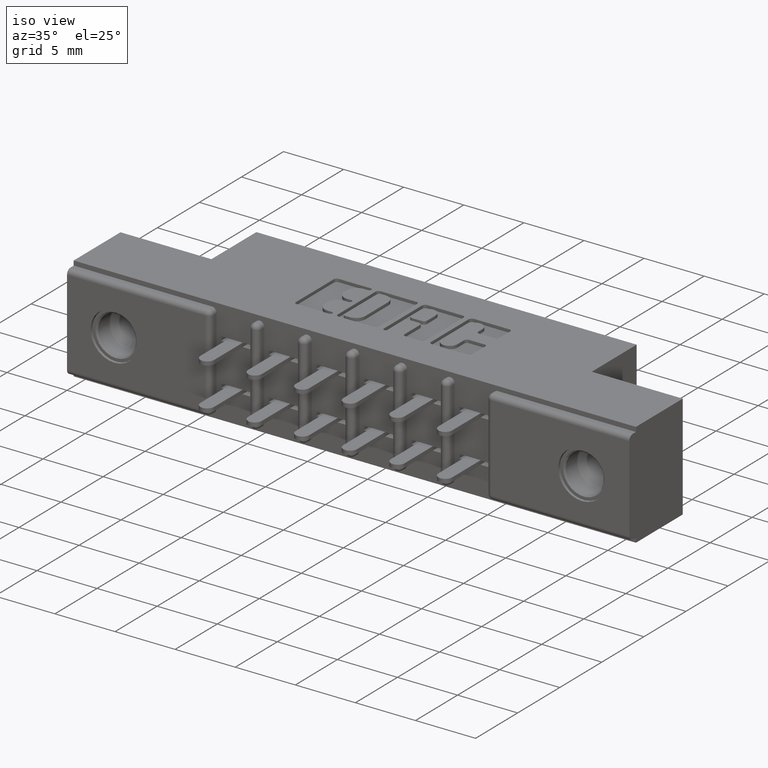
[diagram: clean part render]
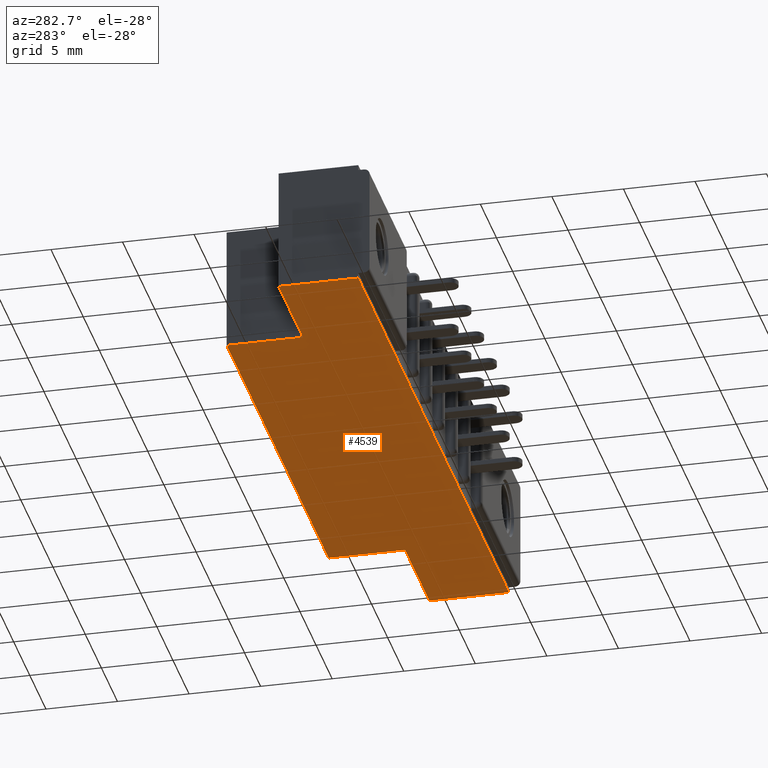
[diagram: tour spotlight — one face highlighted and labeled with its STEP entity id]
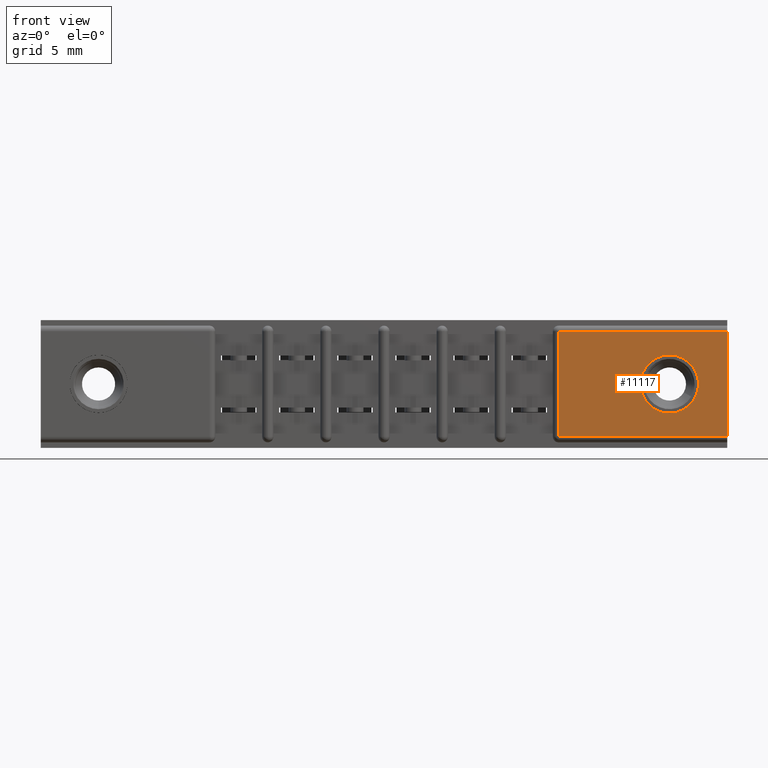
[diagram: tour spotlight — one face highlighted and labeled with its STEP entity id]
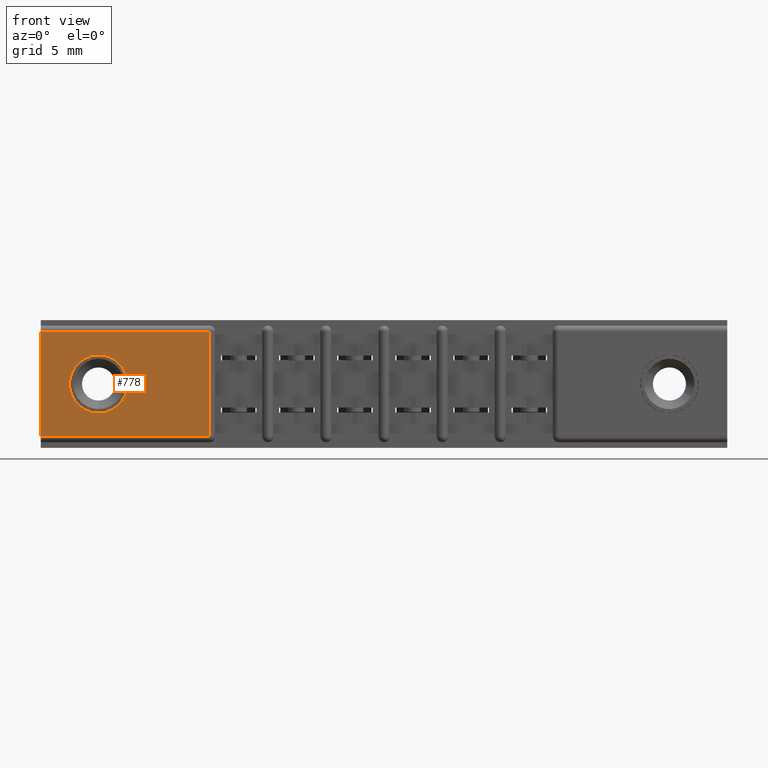
[diagram: tour spotlight — one face highlighted and labeled with its STEP entity id]
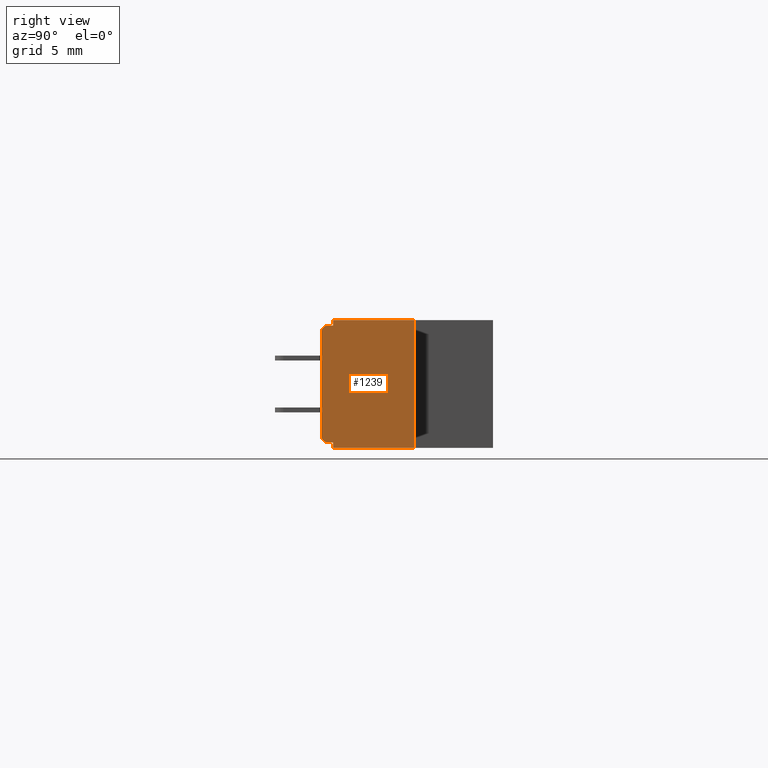
[diagram: tour spotlight — one face highlighted and labeled with its STEP entity id]
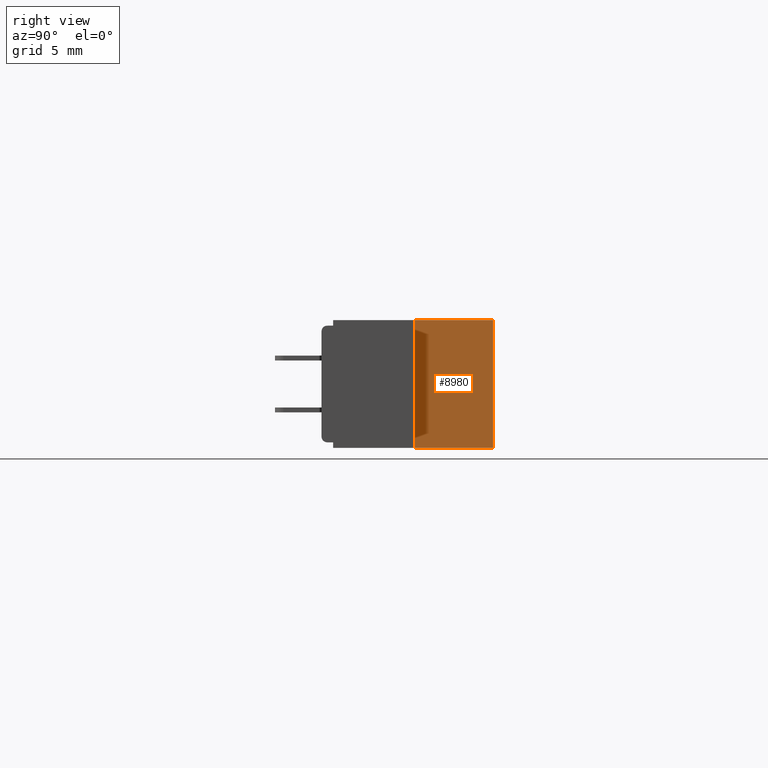
[diagram: tour spotlight — one face highlighted and labeled with its STEP entity id]
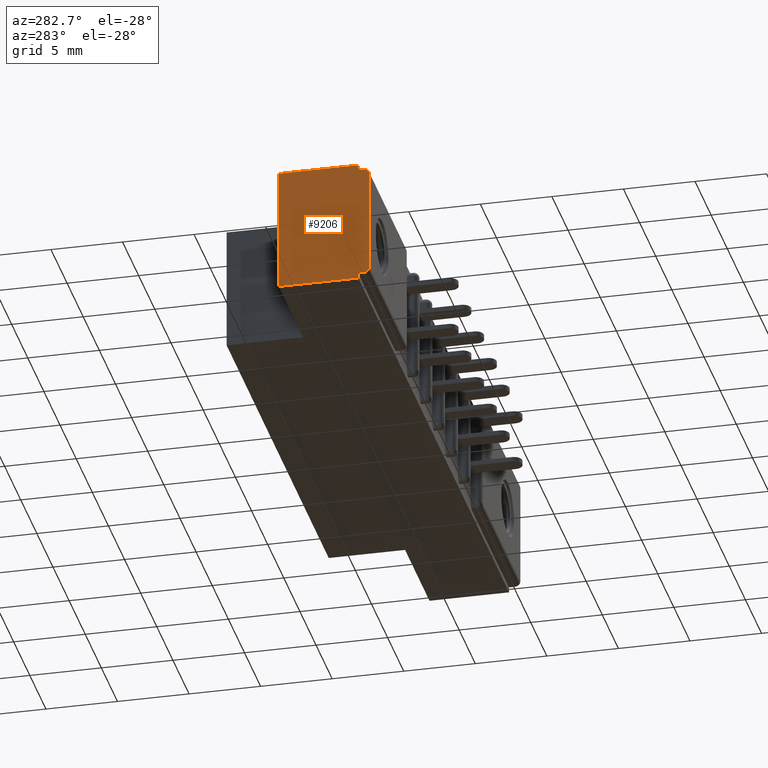
[diagram: tour spotlight — one face highlighted and labeled with its STEP entity id]
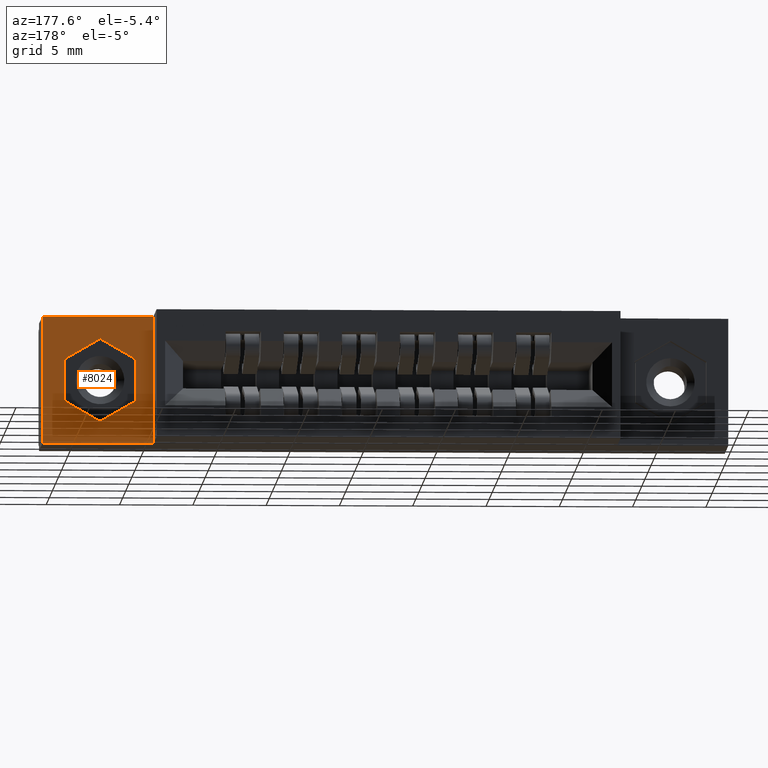
[diagram: tour spotlight — one face highlighted and labeled with its STEP entity id]
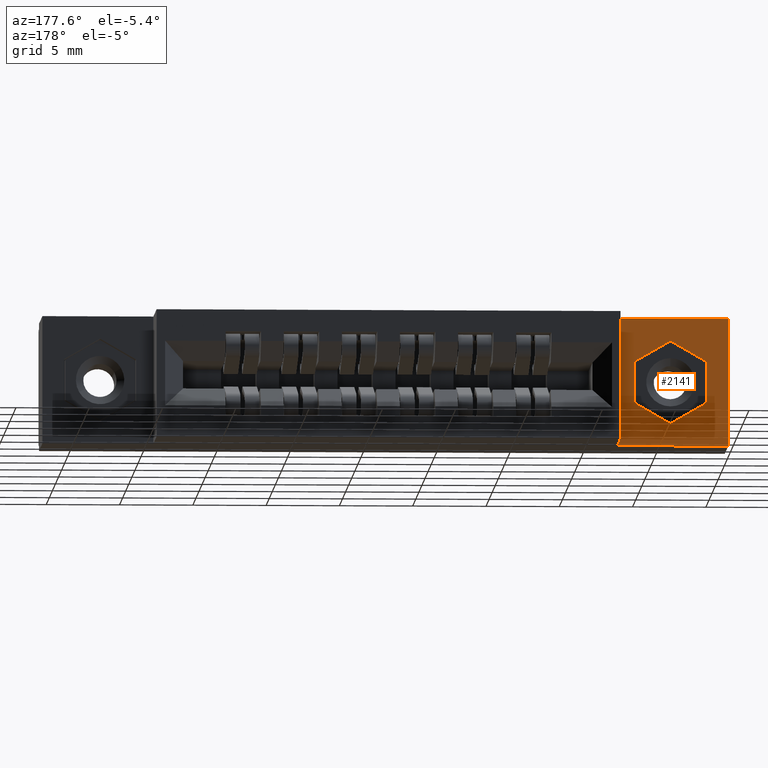
[diagram: tour spotlight — one face highlighted and labeled with its STEP entity id]
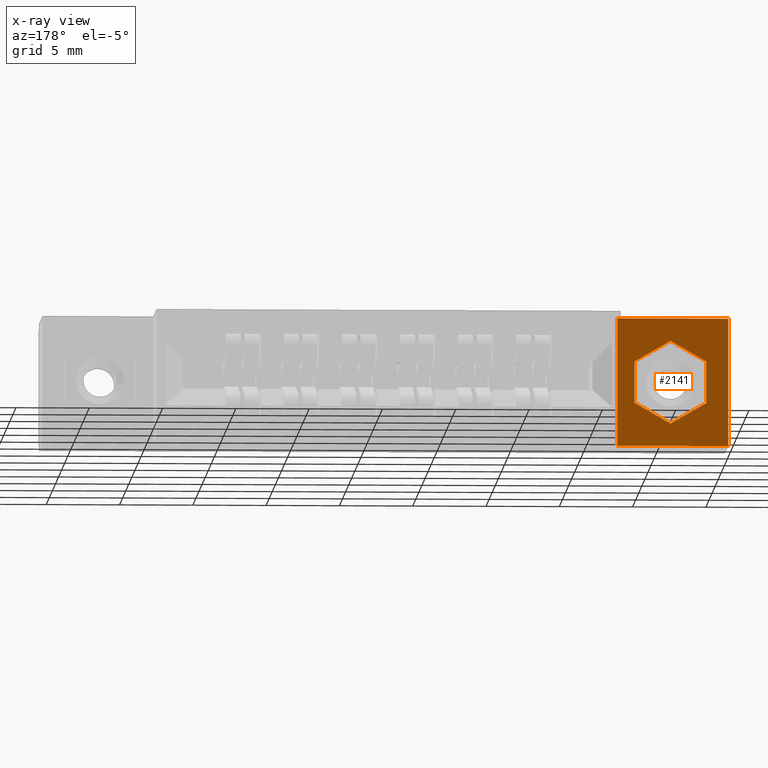
[diagram: x-ray of the same camera — body ghosted, this tour face saturated]
A machine part: a face-by-face anatomy tour. The part has 728 B-rep faces; the first image is the clean iso view, then the 8 largest visible faces are spotlighted one at a time (largest first), each with its STEP entity span.

Face 1 — auxiliary view, entity #4539. In plain terms, the highlighted planar face has unit normal (0, 0, 1).
Definition (entity closure, byte-faithful):
#151 = VECTOR ( 'NONE', #9069, 39.37007874015748100 ) ;
#498 = VERTEX_POINT ( 'NONE', #9422 ) ;
#690 = VECTOR ( 'NONE', #6920, 39.37007874015748100 ) ;
#742 = VERTEX_POINT ( 'NONE', #5279 ) ;
#783 = VERTEX_POINT ( 'NONE', #8348 ) ;
#792 = FACE_OUTER_BOUND ( 'NONE', #4860, .T. ) ;
#863 = DIRECTION ( 'NONE',  ( 0.0000000000000000000, 0.0000000000000000000, 1.000000000000000000 ) ) ;
#1017 = EDGE_CURVE ( 'NONE', #10269, #7176, #8209, .T. ) ;
#1090 = EDGE_CURVE ( 'NONE', #742, #783, #2606, .T. ) ;
#1454 = VECTOR ( 'NONE', #11543, 39.37007874015748100 ) ;
#1474 = CARTESIAN_POINT ( 'NONE',  ( 0.2980000000000002100, 0.2500000000000000600, -0.3430000000000000300 ) ) ;
#1975 = ORIENTED_EDGE ( 'NONE', *, *, #4916, .T. ) ;
#2606 = LINE ( 'NONE', #9921, #151 ) ;
#2779 = LINE ( 'NONE', #7144, #11439 ) ;
#2808 = CARTESIAN_POINT ( 'NONE',  ( 1.842000000000000100, 0.4600000000000000200, -0.3430000000000000300 ) ) ;
#3381 = EDGE_CURVE ( 'NONE', #498, #7655, #4716, .T. ) ;
#3502 = CARTESIAN_POINT ( 'NONE',  ( 1.544000000000000300, 0.2500000000000000600, -0.3429999999999997500 ) ) ;
#3615 = VECTOR ( 'NONE', #6317, 39.37007874015748100 ) ;
#3918 = CARTESIAN_POINT ( 'NONE',  ( 0.2980000000000002100, 0.4600000000000000200, -0.3430000000000000300 ) ) ;
#4260 = DIRECTION ( 'NONE',  ( -0.0000000000000000000, 1.000000000000000000, -0.0000000000000000000 ) ) ;
#4539 = ADVANCED_FACE ( 'NONE', ( #792 ), #5414, .F. ) ;
#4716 = LINE ( 'NONE', #9780, #690 ) ;
#4848 = CARTESIAN_POINT ( 'NONE',  ( 1.544000000000000300, 0.4600000000000000200, -0.3429999999999997500 ) ) ;
#4860 = EDGE_LOOP ( 'NONE', ( #6154, #9697, #9199, #1975, #10842, #10341, #8680, #7476 ) ) ;
#4916 = EDGE_CURVE ( 'NONE', #498, #742, #7272, .T. ) ;
#5079 = CARTESIAN_POINT ( 'NONE',  ( 0.0000000000000000000, 0.2500000000000000600, -0.3430000000000000300 ) ) ;
#5279 = CARTESIAN_POINT ( 'NONE',  ( 1.842000000000000100, 0.03100000000000000000, -0.3430000000000000300 ) ) ;
#5380 = CARTESIAN_POINT ( 'NONE',  ( 0.0000000000000000000, 0.4600000000000000200, -0.3430000000000000300 ) ) ;
#5414 = PLANE ( 'NONE',  #7375 ) ;
#5763 = EDGE_CURVE ( 'NONE', #7655, #9394, #2779, .T. ) ;
#5787 = DIRECTION ( 'NONE',  ( -0.0000000000000000000, 1.000000000000000000, -0.0000000000000000000 ) ) ;
#6154 = ORIENTED_EDGE ( 'NONE', *, *, #7674, .F. ) ;
#6317 = DIRECTION ( 'NONE',  ( -1.000000000000000000, -0.0000000000000000000, -0.0000000000000000000 ) ) ;
#6603 = DIRECTION ( 'NONE',  ( -0.0000000000000000000, -1.000000000000000000, -0.0000000000000000000 ) ) ;
#6920 = DIRECTION ( 'NONE',  ( -1.000000000000000000, 0.0000000000000000000, 9.167275146524376100E-016 ) ) ;
#7144 = CARTESIAN_POINT ( 'NONE',  ( 1.544000000000000300, 0.2500000000000000600, -0.3429999999999997500 ) ) ;
#7176 = VERTEX_POINT ( 'NONE', #7428 ) ;
#7272 = LINE ( 'NONE', #2808, #7400 ) ;
#7375 = AXIS2_PLACEMENT_3D ( 'NONE', #11048, #863, #11880 ) ;
#7400 = VECTOR ( 'NONE', #9287, 39.37007874015748100 ) ;
#7428 = CARTESIAN_POINT ( 'NONE',  ( 0.0000000000000000000, 0.2500000000000000600, -0.3430000000000000300 ) ) ;
#7453 = VECTOR ( 'NONE', #5787, 39.37007874015748100 ) ;
#7476 = ORIENTED_EDGE ( 'NONE', *, *, #8733, .T. ) ;
#7655 = VERTEX_POINT ( 'NONE', #3502 ) ;
#7674 = EDGE_CURVE ( 'NONE', #9394, #11520, #9496, .T. ) ;
#8020 = VECTOR ( 'NONE', #6603, 39.37007874015748100 ) ;
#8209 = LINE ( 'NONE', #5079, #1454 ) ;
#8348 = CARTESIAN_POINT ( 'NONE',  ( 0.0000000000000000000, 0.03100000000000000000, -0.3430000000000000300 ) ) ;
#8452 = LINE ( 'NONE', #8568, #8020 ) ;
#8568 = CARTESIAN_POINT ( 'NONE',  ( 0.0000000000000000000, 0.4600000000000000200, -0.3430000000000000300 ) ) ;
#8607 = LINE ( 'NONE', #10378, #7453 ) ;
#8680 = ORIENTED_EDGE ( 'NONE', *, *, #1017, .F. ) ;
#8733 = EDGE_CURVE ( 'NONE', #10269, #11520, #8607, .T. ) ;
#9069 = DIRECTION ( 'NONE',  ( -1.000000000000000000, -0.0000000000000000000, -0.0000000000000000000 ) ) ;
#9199 = ORIENTED_EDGE ( 'NONE', *, *, #3381, .F. ) ;
#9287 = DIRECTION ( 'NONE',  ( -0.0000000000000000000, -1.000000000000000000, -0.0000000000000000000 ) ) ;
#9394 = VERTEX_POINT ( 'NONE', #4848 ) ;
#9422 = CARTESIAN_POINT ( 'NONE',  ( 1.842000000000000100, 0.2500000000000000600, -0.3430000000000000300 ) ) ;
#9496 = LINE ( 'NONE', #5380, #3615 ) ;
#9697 = ORIENTED_EDGE ( 'NONE', *, *, #5763, .F. ) ;
#9780 = CARTESIAN_POINT ( 'NONE',  ( 1.842000000000000100, 0.2500000000000000600, -0.3430000000000000300 ) ) ;
#9921 = CARTESIAN_POINT ( 'NONE',  ( 1.842000000000000100, 0.03100000000000000000, -0.3430000000000000300 ) ) ;
#10269 = VERTEX_POINT ( 'NONE', #1474 ) ;
#10341 = ORIENTED_EDGE ( 'NONE', *, *, #11568, .F. ) ;
#10378 = CARTESIAN_POINT ( 'NONE',  ( 0.2980000000000002100, 0.2500000000000000600, -0.3430000000000000300 ) ) ;
#10842 = ORIENTED_EDGE ( 'NONE', *, *, #1090, .T. ) ;
#11048 = CARTESIAN_POINT ( 'NONE',  ( 0.0000000000000000000, 0.4600000000000000200, -0.3430000000000000300 ) ) ;
#11439 = VECTOR ( 'NONE', #4260, 39.37007874015748100 ) ;
#11520 = VERTEX_POINT ( 'NONE', #3918 ) ;
#11543 = DIRECTION ( 'NONE',  ( -1.000000000000000000, -0.0000000000000000000, -0.0000000000000000000 ) ) ;
#11568 = EDGE_CURVE ( 'NONE', #7176, #783, #8452, .T. ) ;
#11880 = DIRECTION ( 'NONE',  ( 1.000000000000000000, 0.0000000000000000000, -0.0000000000000000000 ) ) ;

Face 2 — front view, entity #11117. In plain terms, the highlighted planar face has unit normal (0, -1, 0).
Definition (entity closure, byte-faithful):
#344 = CARTESIAN_POINT ( 'NONE',  ( 1.842000000000000100, 0.0000000000000000000, -0.3130000000000000600 ) ) ;
#583 = CARTESIAN_POINT ( 'NONE',  ( 1.687000000000000900, 0.0000000000000000000, -0.1715000000000000100 ) ) ;
#1033 = CARTESIAN_POINT ( 'NONE',  ( 1.842000000000000100, 0.0000000000000000000, -0.02999999999999995400 ) ) ;
#1136 = LINE ( 'NONE', #344, #4465 ) ;
#1232 = VECTOR ( 'NONE', #11676, 39.37007874015748100 ) ;
#1291 = EDGE_CURVE ( 'NONE', #5070, #8453, #8057, .T. ) ;
#1426 = DIRECTION ( 'NONE',  ( 0.0000000000000000000, 0.0000000000000000000, 1.000000000000000000 ) ) ;
#1450 = ORIENTED_EDGE ( 'NONE', *, *, #9495, .F. ) ;
#1983 = FACE_BOUND ( 'NONE', #10618, .T. ) ;
#2077 = CARTESIAN_POINT ( 'NONE',  ( 1.389000000000000200, 0.0000000000000000000, -0.02999999999999995400 ) ) ;
#2180 = CARTESIAN_POINT ( 'NONE',  ( 1.687000000000000900, 0.0000000000000000000, -0.2495000000000001100 ) ) ;
#2344 = CARTESIAN_POINT ( 'NONE',  ( 1.842000000000000100, 0.0000000000000000000, 0.0000000000000000000 ) ) ;
#2368 = VERTEX_POINT ( 'NONE', #11602 ) ;
#2524 = EDGE_CURVE ( 'NONE', #2368, #3075, #10776, .T. ) ;
#2531 = PLANE ( 'NONE',  #7769 ) ;
#2725 = ORIENTED_EDGE ( 'NONE', *, *, #7781, .T. ) ;
#2855 = DIRECTION ( 'NONE',  ( -0.0000000000000000000, -0.0000000000000000000, -1.000000000000000000 ) ) ;
#2893 = EDGE_LOOP ( 'NONE', ( #7401, #8494, #2725, #5229 ) ) ;
#2947 = CARTESIAN_POINT ( 'NONE',  ( 1.842000000000000100, 0.0000000000000000000, -0.3130000000000000600 ) ) ;
#3075 = VERTEX_POINT ( 'NONE', #2180 ) ;
#3227 = ORIENTED_EDGE ( 'NONE', *, *, #2524, .F. ) ;
#3524 = CARTESIAN_POINT ( 'NONE',  ( 0.0000000000000000000, 0.0000000000000000000, -0.02999999999999995400 ) ) ;
#3846 = EDGE_CURVE ( 'NONE', #4987, #10521, #10611, .T. ) ;
#4067 = VECTOR ( 'NONE', #4480, 39.37007874015748100 ) ;
#4219 = LINE ( 'NONE', #3524, #4067 ) ;
#4465 = VECTOR ( 'NONE', #7645, 39.37007874015748100 ) ;
#4480 = DIRECTION ( 'NONE',  ( -1.000000000000000000, 0.0000000000000000000, 0.0000000000000000000 ) ) ;
#4493 = CIRCLE ( 'NONE', #10561, 0.07800000000000008300 ) ;
#4799 = CARTESIAN_POINT ( 'NONE',  ( 0.0000000000000000000, 0.0000000000000000000, -0.3430000000000000300 ) ) ;
#4987 = VERTEX_POINT ( 'NONE', #1033 ) ;
#5070 = VERTEX_POINT ( 'NONE', #2077 ) ;
#5229 = ORIENTED_EDGE ( 'NONE', *, *, #3846, .F. ) ;
#5670 = AXIS2_PLACEMENT_3D ( 'NONE', #7235, #9891, #11771 ) ;
#5722 = DIRECTION ( 'NONE',  ( 0.0000000000000000000, -1.000000000000000000, 0.0000000000000000000 ) ) ;
#6385 = EDGE_CURVE ( 'NONE', #4987, #5070, #4219, .T. ) ;
#6981 = DIRECTION ( 'NONE',  ( 0.0000000000000000000, -1.000000000000000000, 0.0000000000000000000 ) ) ;
#7235 = CARTESIAN_POINT ( 'NONE',  ( 1.687000000000000900, 0.0000000000000000000, -0.1715000000000000100 ) ) ;
#7401 = ORIENTED_EDGE ( 'NONE', *, *, #6385, .T. ) ;
#7645 = DIRECTION ( 'NONE',  ( 1.000000000000000000, -0.0000000000000000000, -0.0000000000000000000 ) ) ;
#7769 = AXIS2_PLACEMENT_3D ( 'NONE', #4799, #5722, #8495 ) ;
#7781 = EDGE_CURVE ( 'NONE', #8453, #10521, #1136, .T. ) ;
#8057 = LINE ( 'NONE', #8289, #8352 ) ;
#8289 = CARTESIAN_POINT ( 'NONE',  ( 1.389000000000000200, 0.0000000000000000000, -0.3130000000000000600 ) ) ;
#8352 = VECTOR ( 'NONE', #2855, 39.37007874015748100 ) ;
#8453 = VERTEX_POINT ( 'NONE', #10917 ) ;
#8494 = ORIENTED_EDGE ( 'NONE', *, *, #1291, .T. ) ;
#8495 = DIRECTION ( 'NONE',  ( 0.0000000000000000000, -0.0000000000000000000, -1.000000000000000000 ) ) ;
#9495 = EDGE_CURVE ( 'NONE', #3075, #2368, #4493, .T. ) ;
#9891 = DIRECTION ( 'NONE',  ( 0.0000000000000000000, -1.000000000000000000, 0.0000000000000000000 ) ) ;
#10521 = VERTEX_POINT ( 'NONE', #2947 ) ;
#10561 = AXIS2_PLACEMENT_3D ( 'NONE', #583, #6981, #1426 ) ;
#10611 = LINE ( 'NONE', #2344, #1232 ) ;
#10618 = EDGE_LOOP ( 'NONE', ( #1450, #3227 ) ) ;
#10776 = CIRCLE ( 'NONE', #5670, 0.07800000000000008300 ) ;
#10917 = CARTESIAN_POINT ( 'NONE',  ( 1.389000000000000200, 0.0000000000000000000, -0.3130000000000000600 ) ) ;
#10930 = FACE_OUTER_BOUND ( 'NONE', #2893, .T. ) ;
#11117 = ADVANCED_FACE ( 'NONE', ( #1983, #10930 ), #2531, .T. ) ;
#11602 = CARTESIAN_POINT ( 'NONE',  ( 1.687000000000000900, 0.0000000000000000000, -0.09349999999999991700 ) ) ;
#11676 = DIRECTION ( 'NONE',  ( 0.0000000000000000000, 0.0000000000000000000, -1.000000000000000000 ) ) ;
#11771 = DIRECTION ( 'NONE',  ( 0.0000000000000000000, 0.0000000000000000000, 1.000000000000000000 ) ) ;

Face 3 — front view, entity #778. In plain terms, the highlighted planar face has unit normal (0, -1, 0).
Definition (entity closure, byte-faithful):
#324 = ORIENTED_EDGE ( 'NONE', *, *, #9268, .F. ) ;
#449 = AXIS2_PLACEMENT_3D ( 'NONE', #4355, #2616, #9054 ) ;
#602 = FACE_BOUND ( 'NONE', #4290, .T. ) ;
#778 = ADVANCED_FACE ( 'NONE', ( #602, #6371 ), #6396, .T. ) ;
#854 = LINE ( 'NONE', #3252, #2138 ) ;
#1175 = VECTOR ( 'NONE', #10387, 39.37007874015748100 ) ;
#1860 = ORIENTED_EDGE ( 'NONE', *, *, #11170, .T. ) ;
#1941 = EDGE_CURVE ( 'NONE', #10838, #7256, #854, .T. ) ;
#2138 = VECTOR ( 'NONE', #4186, 39.37007874015748100 ) ;
#2245 = EDGE_CURVE ( 'NONE', #7256, #4732, #3436, .T. ) ;
#2302 = CARTESIAN_POINT ( 'NONE',  ( 0.1549999999999998600, 0.0000000000000000000, -0.09350000000000000000 ) ) ;
#2597 = CARTESIAN_POINT ( 'NONE',  ( 0.1549999999999998600, 0.0000000000000000000, -0.1715000000000000100 ) ) ;
#2616 = DIRECTION ( 'NONE',  ( 0.0000000000000000000, -1.000000000000000000, 0.0000000000000000000 ) ) ;
#2703 = VECTOR ( 'NONE', #6175, 39.37007874015748100 ) ;
#2718 = DIRECTION ( 'NONE',  ( 0.0000000000000000000, -1.000000000000000000, 0.0000000000000000000 ) ) ;
#3252 = CARTESIAN_POINT ( 'NONE',  ( 1.842000000000000100, 0.0000000000000000000, -0.3130000000000000600 ) ) ;
#3275 = ORIENTED_EDGE ( 'NONE', *, *, #1941, .T. ) ;
#3436 = LINE ( 'NONE', #10891, #8896 ) ;
#3820 = AXIS2_PLACEMENT_3D ( 'NONE', #8227, #2718, #4573 ) ;
#3963 = CARTESIAN_POINT ( 'NONE',  ( 0.4530000000000004000, 0.0000000000000000000, -0.02999999999999995400 ) ) ;
#4186 = DIRECTION ( 'NONE',  ( 1.000000000000000000, -0.0000000000000000000, -0.0000000000000000000 ) ) ;
#4290 = EDGE_LOOP ( 'NONE', ( #4892, #10441 ) ) ;
#4355 = CARTESIAN_POINT ( 'NONE',  ( 0.1549999999999998600, 0.0000000000000000000, -0.1715000000000000100 ) ) ;
#4477 = CARTESIAN_POINT ( 'NONE',  ( 0.0000000000000000000, 0.0000000000000000000, -0.02999999999999995400 ) ) ;
#4573 = DIRECTION ( 'NONE',  ( 0.0000000000000000000, -0.0000000000000000000, -1.000000000000000000 ) ) ;
#4638 = VERTEX_POINT ( 'NONE', #11287 ) ;
#4732 = VERTEX_POINT ( 'NONE', #3963 ) ;
#4892 = ORIENTED_EDGE ( 'NONE', *, *, #6234, .F. ) ;
#6085 = LINE ( 'NONE', #9411, #1175 ) ;
#6175 = DIRECTION ( 'NONE',  ( -1.000000000000000000, 0.0000000000000000000, 0.0000000000000000000 ) ) ;
#6234 = EDGE_CURVE ( 'NONE', #4638, #8356, #6509, .T. ) ;
#6371 = FACE_OUTER_BOUND ( 'NONE', #10164, .T. ) ;
#6396 = PLANE ( 'NONE',  #3820 ) ;
#6509 = CIRCLE ( 'NONE', #449, 0.07800000000000000000 ) ;
#6824 = CARTESIAN_POINT ( 'NONE',  ( 0.4530000000000003500, 0.0000000000000000000, -0.3130000000000000600 ) ) ;
#7173 = CARTESIAN_POINT ( 'NONE',  ( 0.0000000000000000000, 0.0000000000000000000, -0.02999999999999995400 ) ) ;
#7256 = VERTEX_POINT ( 'NONE', #6824 ) ;
#7587 = EDGE_CURVE ( 'NONE', #8356, #4638, #8907, .T. ) ;
#7740 = LINE ( 'NONE', #7173, #2703 ) ;
#8227 = CARTESIAN_POINT ( 'NONE',  ( 0.0000000000000000000, 0.0000000000000000000, -0.3430000000000000300 ) ) ;
#8356 = VERTEX_POINT ( 'NONE', #2302 ) ;
#8896 = VECTOR ( 'NONE', #11873, 39.37007874015748100 ) ;
#8907 = CIRCLE ( 'NONE', #9237, 0.07800000000000000000 ) ;
#9054 = DIRECTION ( 'NONE',  ( 0.0000000000000000000, 0.0000000000000000000, -1.000000000000000000 ) ) ;
#9097 = VERTEX_POINT ( 'NONE', #4477 ) ;
#9154 = DIRECTION ( 'NONE',  ( 0.0000000000000000000, 0.0000000000000000000, -1.000000000000000000 ) ) ;
#9237 = AXIS2_PLACEMENT_3D ( 'NONE', #2597, #10863, #9154 ) ;
#9268 = EDGE_CURVE ( 'NONE', #10838, #9097, #6085, .T. ) ;
#9411 = CARTESIAN_POINT ( 'NONE',  ( 0.0000000000000000000, 0.0000000000000000000, 0.0000000000000000000 ) ) ;
#10129 = CARTESIAN_POINT ( 'NONE',  ( 0.0000000000000000000, 0.0000000000000000000, -0.3130000000000000600 ) ) ;
#10164 = EDGE_LOOP ( 'NONE', ( #3275, #11868, #1860, #324 ) ) ;
#10387 = DIRECTION ( 'NONE',  ( -0.0000000000000000000, -0.0000000000000000000, 1.000000000000000000 ) ) ;
#10441 = ORIENTED_EDGE ( 'NONE', *, *, #7587, .F. ) ;
#10838 = VERTEX_POINT ( 'NONE', #10129 ) ;
#10863 = DIRECTION ( 'NONE',  ( 0.0000000000000000000, -1.000000000000000000, 0.0000000000000000000 ) ) ;
#10891 = CARTESIAN_POINT ( 'NONE',  ( 0.4530000000000004000, 0.0000000000000000000, -0.02999999999999995400 ) ) ;
#11170 = EDGE_CURVE ( 'NONE', #4732, #9097, #7740, .T. ) ;
#11287 = CARTESIAN_POINT ( 'NONE',  ( 0.1549999999999998600, 0.0000000000000000000, -0.2495000000000000000 ) ) ;
#11868 = ORIENTED_EDGE ( 'NONE', *, *, #2245, .T. ) ;
#11873 = DIRECTION ( 'NONE',  ( 6.030569522437646000E-016, -0.0000000000000000000, 1.000000000000000000 ) ) ;

Face 4 — right view, entity #1239. In plain terms, the highlighted planar face has unit normal (-1, 0, 0).
Definition (entity closure, byte-faithful):
#175 = AXIS2_PLACEMENT_3D ( 'NONE', #6531, #11161, #1004 ) ;
#463 = CARTESIAN_POINT ( 'NONE',  ( 1.842000000000000100, 0.03100000000000000000, -0.01499999999999997700 ) ) ;
#498 = VERTEX_POINT ( 'NONE', #9422 ) ;
#742 = VERTEX_POINT ( 'NONE', #5279 ) ;
#1004 = DIRECTION ( 'NONE',  ( 0.0000000000000000000, 0.0000000000000000000, 1.000000000000000000 ) ) ;
#1033 = CARTESIAN_POINT ( 'NONE',  ( 1.842000000000000100, 0.0000000000000000000, -0.02999999999999995400 ) ) ;
#1232 = VECTOR ( 'NONE', #11676, 39.37007874015748100 ) ;
#1239 = ADVANCED_FACE ( 'NONE', ( #2007 ), #8333, .F. ) ;
#1259 = LINE ( 'NONE', #8488, #11664 ) ;
#1410 = EDGE_CURVE ( 'NONE', #10521, #2807, #4190, .T. ) ;
#1425 = VERTEX_POINT ( 'NONE', #6604 ) ;
#1612 = VECTOR ( 'NONE', #6454, 39.37007874015748100 ) ;
#1711 = DIRECTION ( 'NONE',  ( -0.0000000000000000000, -1.000000000000000000, -0.0000000000000000000 ) ) ;
#1980 = VERTEX_POINT ( 'NONE', #2428 ) ;
#2007 = FACE_OUTER_BOUND ( 'NONE', #4842, .T. ) ;
#2301 = VERTEX_POINT ( 'NONE', #6257 ) ;
#2344 = CARTESIAN_POINT ( 'NONE',  ( 1.842000000000000100, 0.0000000000000000000, 0.0000000000000000000 ) ) ;
#2428 = CARTESIAN_POINT ( 'NONE',  ( 1.842000000000000100, 0.01499999999999999900, -0.01499999999999997700 ) ) ;
#2585 = CARTESIAN_POINT ( 'NONE',  ( 1.842000000000000100, 0.03100000000000000000, 0.0000000000000000000 ) ) ;
#2676 = DIRECTION ( 'NONE',  ( 1.000000000000000000, -0.0000000000000000000, -0.0000000000000000000 ) ) ;
#2723 = LINE ( 'NONE', #4369, #8484 ) ;
#2807 = VERTEX_POINT ( 'NONE', #7316 ) ;
#2808 = CARTESIAN_POINT ( 'NONE',  ( 1.842000000000000100, 0.4600000000000000200, -0.3430000000000000300 ) ) ;
#2868 = EDGE_CURVE ( 'NONE', #2301, #742, #8458, .T. ) ;
#2900 = DIRECTION ( 'NONE',  ( 1.000000000000000000, -0.0000000000000000000, -0.0000000000000000000 ) ) ;
#2947 = CARTESIAN_POINT ( 'NONE',  ( 1.842000000000000100, 0.0000000000000000000, -0.3130000000000000600 ) ) ;
#3056 = VECTOR ( 'NONE', #1711, 39.37007874015748100 ) ;
#3146 = AXIS2_PLACEMENT_3D ( 'NONE', #6432, #2676, #9929 ) ;
#3496 = LINE ( 'NONE', #8368, #1612 ) ;
#3846 = EDGE_CURVE ( 'NONE', #4987, #10521, #10611, .T. ) ;
#4190 = CIRCLE ( 'NONE', #5359, 0.01500000000000001200 ) ;
#4369 = CARTESIAN_POINT ( 'NONE',  ( 1.842000000000000100, 0.03100000000000000000, 0.0000000000000000000 ) ) ;
#4769 = DIRECTION ( 'NONE',  ( -0.0000000000000000000, -0.0000000000000000000, -1.000000000000000000 ) ) ;
#4842 = EDGE_LOOP ( 'NONE', ( #7852, #10119, #11580, #11751, #10301, #5726, #10580, #11141, #5124, #7545 ) ) ;
#4916 = EDGE_CURVE ( 'NONE', #498, #742, #7272, .T. ) ;
#4987 = VERTEX_POINT ( 'NONE', #1033 ) ;
#5124 = ORIENTED_EDGE ( 'NONE', *, *, #9182, .T. ) ;
#5279 = CARTESIAN_POINT ( 'NONE',  ( 1.842000000000000100, 0.03100000000000000000, -0.3430000000000000300 ) ) ;
#5359 = AXIS2_PLACEMENT_3D ( 'NONE', #9421, #2900, #11202 ) ;
#5375 = CARTESIAN_POINT ( 'NONE',  ( 1.842000000000000100, 0.4600000000000000200, 0.0000000000000000000 ) ) ;
#5726 = ORIENTED_EDGE ( 'NONE', *, *, #5862, .T. ) ;
#5862 = EDGE_CURVE ( 'NONE', #1980, #4987, #5952, .T. ) ;
#5865 = EDGE_CURVE ( 'NONE', #1425, #11300, #9243, .T. ) ;
#5952 = CIRCLE ( 'NONE', #3146, 0.01499999999999999900 ) ;
#6222 = DIRECTION ( 'NONE',  ( 0.0000000000000000000, 0.0000000000000000000, -1.000000000000000000 ) ) ;
#6257 = CARTESIAN_POINT ( 'NONE',  ( 1.842000000000000100, 0.03100000000000000000, -0.3280000000000000100 ) ) ;
#6432 = CARTESIAN_POINT ( 'NONE',  ( 1.842000000000000100, 0.01499999999999999900, -0.02999999999999995400 ) ) ;
#6454 = DIRECTION ( 'NONE',  ( 0.0000000000000000000, 1.000000000000000000, 0.0000000000000000000 ) ) ;
#6531 = CARTESIAN_POINT ( 'NONE',  ( 1.842000000000000100, 0.4600000000000000200, 0.0000000000000000000 ) ) ;
#6581 = CARTESIAN_POINT ( 'NONE',  ( 1.842000000000000100, 0.03100000000000000000, -0.3430000000000000300 ) ) ;
#6604 = CARTESIAN_POINT ( 'NONE',  ( 1.842000000000000100, 0.2500000000000000600, 0.0000000000000000000 ) ) ;
#6927 = VECTOR ( 'NONE', #9983, 39.37007874015748100 ) ;
#7272 = LINE ( 'NONE', #2808, #7400 ) ;
#7316 = CARTESIAN_POINT ( 'NONE',  ( 1.842000000000000100, 0.01499999999999999900, -0.3280000000000000100 ) ) ;
#7400 = VECTOR ( 'NONE', #9287, 39.37007874015748100 ) ;
#7417 = VERTEX_POINT ( 'NONE', #463 ) ;
#7483 = EDGE_CURVE ( 'NONE', #11300, #7417, #2723, .T. ) ;
#7485 = LINE ( 'NONE', #11897, #6927 ) ;
#7545 = ORIENTED_EDGE ( 'NONE', *, *, #2868, .T. ) ;
#7852 = ORIENTED_EDGE ( 'NONE', *, *, #4916, .F. ) ;
#8333 = PLANE ( 'NONE',  #175 ) ;
#8368 = CARTESIAN_POINT ( 'NONE',  ( 1.842000000000000100, 0.0000000000000000000, -0.3280000000000000100 ) ) ;
#8458 = LINE ( 'NONE', #6581, #11507 ) ;
#8484 = VECTOR ( 'NONE', #6222, 39.37007874015748100 ) ;
#8488 = CARTESIAN_POINT ( 'NONE',  ( 1.842000000000000100, 0.2500000000000000600, 0.0000000000000000000 ) ) ;
#9182 = EDGE_CURVE ( 'NONE', #2807, #2301, #3496, .T. ) ;
#9243 = LINE ( 'NONE', #5375, #3056 ) ;
#9287 = DIRECTION ( 'NONE',  ( -0.0000000000000000000, -1.000000000000000000, -0.0000000000000000000 ) ) ;
#9420 = DIRECTION ( 'NONE',  ( 0.0000000000000000000, 0.0000000000000000000, -1.000000000000000000 ) ) ;
#9421 = CARTESIAN_POINT ( 'NONE',  ( 1.842000000000000100, 0.01499999999999999900, -0.3130000000000000600 ) ) ;
#9422 = CARTESIAN_POINT ( 'NONE',  ( 1.842000000000000100, 0.2500000000000000600, -0.3430000000000000300 ) ) ;
#9804 = EDGE_CURVE ( 'NONE', #7417, #1980, #7485, .T. ) ;
#9929 = DIRECTION ( 'NONE',  ( 0.0000000000000000000, 0.0000000000000000000, 1.000000000000000000 ) ) ;
#9983 = DIRECTION ( 'NONE',  ( -0.0000000000000000000, -1.000000000000000000, -0.0000000000000000000 ) ) ;
#10119 = ORIENTED_EDGE ( 'NONE', *, *, #11591, .F. ) ;
#10301 = ORIENTED_EDGE ( 'NONE', *, *, #9804, .T. ) ;
#10521 = VERTEX_POINT ( 'NONE', #2947 ) ;
#10580 = ORIENTED_EDGE ( 'NONE', *, *, #3846, .T. ) ;
#10611 = LINE ( 'NONE', #2344, #1232 ) ;
#11141 = ORIENTED_EDGE ( 'NONE', *, *, #1410, .T. ) ;
#11161 = DIRECTION ( 'NONE',  ( -1.000000000000000000, 0.0000000000000000000, 0.0000000000000000000 ) ) ;
#11202 = DIRECTION ( 'NONE',  ( 0.0000000000000000000, 0.0000000000000000000, 1.000000000000000000 ) ) ;
#11300 = VERTEX_POINT ( 'NONE', #2585 ) ;
#11507 = VECTOR ( 'NONE', #4769, 39.37007874015748100 ) ;
#11580 = ORIENTED_EDGE ( 'NONE', *, *, #5865, .T. ) ;
#11591 = EDGE_CURVE ( 'NONE', #1425, #498, #1259, .T. ) ;
#11664 = VECTOR ( 'NONE', #9420, 39.37007874015748100 ) ;
#11676 = DIRECTION ( 'NONE',  ( 0.0000000000000000000, 0.0000000000000000000, -1.000000000000000000 ) ) ;
#11751 = ORIENTED_EDGE ( 'NONE', *, *, #7483, .T. ) ;
#11897 = CARTESIAN_POINT ( 'NONE',  ( 1.842000000000000100, 0.0000000000000000000, -0.01499999999999997700 ) ) ;

Face 5 — right view, entity #8980. In plain terms, the highlighted planar face has unit normal (-1, 0, 0).
Definition (entity closure, byte-faithful):
#111 = LINE ( 'NONE', #2115, #1123 ) ;
#320 = VERTEX_POINT ( 'NONE', #4422 ) ;
#704 = LINE ( 'NONE', #10507, #2566 ) ;
#810 = ORIENTED_EDGE ( 'NONE', *, *, #11192, .F. ) ;
#978 = ORIENTED_EDGE ( 'NONE', *, *, #1594, .T. ) ;
#1123 = VECTOR ( 'NONE', #5057, 39.37007874015748100 ) ;
#1594 = EDGE_CURVE ( 'NONE', #9394, #4988, #6610, .T. ) ;
#2115 = CARTESIAN_POINT ( 'NONE',  ( 1.544000000000000300, 0.2500000000000000600, 0.0000000000000000000 ) ) ;
#2332 = EDGE_LOOP ( 'NONE', ( #978, #810, #2354, #3814 ) ) ;
#2354 = ORIENTED_EDGE ( 'NONE', *, *, #2408, .F. ) ;
#2373 = CARTESIAN_POINT ( 'NONE',  ( 1.544000000000000300, 0.4600000000000000200, 0.0000000000000000000 ) ) ;
#2408 = EDGE_CURVE ( 'NONE', #7655, #320, #111, .T. ) ;
#2566 = VECTOR ( 'NONE', #8510, 39.37007874015748100 ) ;
#2779 = LINE ( 'NONE', #7144, #11439 ) ;
#2845 = FACE_OUTER_BOUND ( 'NONE', #2332, .T. ) ;
#3502 = CARTESIAN_POINT ( 'NONE',  ( 1.544000000000000300, 0.2500000000000000600, -0.3429999999999997500 ) ) ;
#3814 = ORIENTED_EDGE ( 'NONE', *, *, #5763, .T. ) ;
#4260 = DIRECTION ( 'NONE',  ( -0.0000000000000000000, 1.000000000000000000, -0.0000000000000000000 ) ) ;
#4422 = CARTESIAN_POINT ( 'NONE',  ( 1.544000000000000300, 0.2500000000000000600, 0.0000000000000000000 ) ) ;
#4747 = CARTESIAN_POINT ( 'NONE',  ( 1.544000000000000300, 0.4600000000000000200, 0.0000000000000000000 ) ) ;
#4848 = CARTESIAN_POINT ( 'NONE',  ( 1.544000000000000300, 0.4600000000000000200, -0.3429999999999997500 ) ) ;
#4988 = VERTEX_POINT ( 'NONE', #4747 ) ;
#5057 = DIRECTION ( 'NONE',  ( -0.0000000000000000000, -0.0000000000000000000, 1.000000000000000000 ) ) ;
#5763 = EDGE_CURVE ( 'NONE', #7655, #9394, #2779, .T. ) ;
#6123 = DIRECTION ( 'NONE',  ( -0.0000000000000000000, -0.0000000000000000000, 1.000000000000000000 ) ) ;
#6189 = CARTESIAN_POINT ( 'NONE',  ( 1.544000000000000300, 0.2500000000000000600, 0.0000000000000000000 ) ) ;
#6230 = DIRECTION ( 'NONE',  ( -1.000000000000000000, 0.0000000000000000000, -0.0000000000000000000 ) ) ;
#6610 = LINE ( 'NONE', #2373, #11383 ) ;
#7110 = DIRECTION ( 'NONE',  ( -0.0000000000000000000, 0.0000000000000000000, 1.000000000000000000 ) ) ;
#7144 = CARTESIAN_POINT ( 'NONE',  ( 1.544000000000000300, 0.2500000000000000600, -0.3429999999999997500 ) ) ;
#7655 = VERTEX_POINT ( 'NONE', #3502 ) ;
#7786 = AXIS2_PLACEMENT_3D ( 'NONE', #6189, #6230, #7110 ) ;
#8510 = DIRECTION ( 'NONE',  ( -0.0000000000000000000, 1.000000000000000000, -0.0000000000000000000 ) ) ;
#8980 = ADVANCED_FACE ( 'NONE', ( #2845 ), #11730, .F. ) ;
#9394 = VERTEX_POINT ( 'NONE', #4848 ) ;
#10507 = CARTESIAN_POINT ( 'NONE',  ( 1.544000000000000300, 0.2500000000000000600, 0.0000000000000000000 ) ) ;
#11192 = EDGE_CURVE ( 'NONE', #320, #4988, #704, .T. ) ;
#11383 = VECTOR ( 'NONE', #6123, 39.37007874015748100 ) ;
#11439 = VECTOR ( 'NONE', #4260, 39.37007874015748100 ) ;
#11730 = PLANE ( 'NONE',  #7786 ) ;

Face 6 — auxiliary view, entity #9206. In plain terms, the highlighted planar face has unit normal (1, 0, 0).
Definition (entity closure, byte-faithful):
#7 = ORIENTED_EDGE ( 'NONE', *, *, #6553, .F. ) ;
#193 = AXIS2_PLACEMENT_3D ( 'NONE', #10721, #489, #11661 ) ;
#214 = ORIENTED_EDGE ( 'NONE', *, *, #8606, .T. ) ;
#280 = EDGE_CURVE ( 'NONE', #7999, #9757, #6798, .T. ) ;
#489 = DIRECTION ( 'NONE',  ( -1.000000000000000000, 0.0000000000000000000, -0.0000000000000000000 ) ) ;
#588 = CARTESIAN_POINT ( 'NONE',  ( 0.0000000000000000000, 0.0000000000000000000, -0.3280000000000000100 ) ) ;
#783 = VERTEX_POINT ( 'NONE', #8348 ) ;
#1113 = ORIENTED_EDGE ( 'NONE', *, *, #4900, .F. ) ;
#1172 = CARTESIAN_POINT ( 'NONE',  ( 0.0000000000000000000, 0.01499999999999999900, -0.3280000000000000100 ) ) ;
#1175 = VECTOR ( 'NONE', #10387, 39.37007874015748100 ) ;
#1539 = CARTESIAN_POINT ( 'NONE',  ( 0.0000000000000000000, 0.03100000000000000000, -0.01499999999999997700 ) ) ;
#1925 = CARTESIAN_POINT ( 'NONE',  ( 0.0000000000000000000, 0.0000000000000000000, -0.01499999999999997700 ) ) ;
#2001 = CARTESIAN_POINT ( 'NONE',  ( 0.0000000000000000000, 0.4600000000000000200, 0.0000000000000000000 ) ) ;
#2338 = VERTEX_POINT ( 'NONE', #3527 ) ;
#2850 = PLANE ( 'NONE',  #4943 ) ;
#2890 = DIRECTION ( 'NONE',  ( 1.000000000000000000, -0.0000000000000000000, 0.0000000000000000000 ) ) ;
#3019 = LINE ( 'NONE', #588, #7759 ) ;
#3099 = CARTESIAN_POINT ( 'NONE',  ( 0.0000000000000000000, 0.01499999999999999900, -0.01499999999999997700 ) ) ;
#3527 = CARTESIAN_POINT ( 'NONE',  ( 0.0000000000000000000, 0.03100000000000000000, -0.3280000000000000100 ) ) ;
#3792 = EDGE_LOOP ( 'NONE', ( #7, #6499, #4129, #4921, #8686, #214, #5737, #4466, #1113, #7115 ) ) ;
#3876 = DIRECTION ( 'NONE',  ( -0.0000000000000000000, -0.0000000000000000000, 1.000000000000000000 ) ) ;
#3948 = CARTESIAN_POINT ( 'NONE',  ( 0.0000000000000000000, 0.2500000000000000600, 0.0000000000000000000 ) ) ;
#4129 = ORIENTED_EDGE ( 'NONE', *, *, #11568, .T. ) ;
#4466 = ORIENTED_EDGE ( 'NONE', *, *, #4764, .T. ) ;
#4477 = CARTESIAN_POINT ( 'NONE',  ( 0.0000000000000000000, 0.0000000000000000000, -0.02999999999999995400 ) ) ;
#4668 = DIRECTION ( 'NONE',  ( -0.0000000000000000000, -1.000000000000000000, -0.0000000000000000000 ) ) ;
#4764 = EDGE_CURVE ( 'NONE', #9097, #11785, #10746, .T. ) ;
#4900 = EDGE_CURVE ( 'NONE', #9757, #11785, #7118, .T. ) ;
#4921 = ORIENTED_EDGE ( 'NONE', *, *, #7552, .F. ) ;
#4943 = AXIS2_PLACEMENT_3D ( 'NONE', #2001, #2890, #9290 ) ;
#5058 = EDGE_CURVE ( 'NONE', #7176, #6707, #7533, .T. ) ;
#5737 = ORIENTED_EDGE ( 'NONE', *, *, #9268, .T. ) ;
#5799 = CARTESIAN_POINT ( 'NONE',  ( 0.0000000000000000000, 0.4600000000000000200, 0.0000000000000000000 ) ) ;
#5824 = VECTOR ( 'NONE', #3876, 39.37007874015748100 ) ;
#6067 = VECTOR ( 'NONE', #6722, 39.37007874015748100 ) ;
#6085 = LINE ( 'NONE', #9411, #1175 ) ;
#6270 = VERTEX_POINT ( 'NONE', #1172 ) ;
#6413 = DIRECTION ( 'NONE',  ( 0.0000000000000000000, 0.0000000000000000000, -1.000000000000000000 ) ) ;
#6489 = DIRECTION ( 'NONE',  ( -1.000000000000000000, 0.0000000000000000000, -0.0000000000000000000 ) ) ;
#6499 = ORIENTED_EDGE ( 'NONE', *, *, #5058, .F. ) ;
#6553 = EDGE_CURVE ( 'NONE', #6707, #7999, #7362, .T. ) ;
#6603 = DIRECTION ( 'NONE',  ( -0.0000000000000000000, -1.000000000000000000, -0.0000000000000000000 ) ) ;
#6707 = VERTEX_POINT ( 'NONE', #10513 ) ;
#6722 = DIRECTION ( 'NONE',  ( -0.0000000000000000000, -1.000000000000000000, -0.0000000000000000000 ) ) ;
#6798 = LINE ( 'NONE', #8917, #10260 ) ;
#7115 = ORIENTED_EDGE ( 'NONE', *, *, #280, .F. ) ;
#7118 = LINE ( 'NONE', #1925, #10300 ) ;
#7176 = VERTEX_POINT ( 'NONE', #7428 ) ;
#7232 = CARTESIAN_POINT ( 'NONE',  ( 0.0000000000000000000, 0.03100000000000000000, -0.3430000000000000300 ) ) ;
#7362 = LINE ( 'NONE', #5799, #6067 ) ;
#7373 = EDGE_CURVE ( 'NONE', #6270, #2338, #3019, .T. ) ;
#7428 = CARTESIAN_POINT ( 'NONE',  ( 0.0000000000000000000, 0.2500000000000000600, -0.3430000000000000300 ) ) ;
#7533 = LINE ( 'NONE', #3948, #5824 ) ;
#7552 = EDGE_CURVE ( 'NONE', #2338, #783, #8619, .T. ) ;
#7759 = VECTOR ( 'NONE', #8745, 39.37007874015748100 ) ;
#7999 = VERTEX_POINT ( 'NONE', #10856 ) ;
#8020 = VECTOR ( 'NONE', #6603, 39.37007874015748100 ) ;
#8066 = DIRECTION ( 'NONE',  ( 0.0000000000000000000, 0.0000000000000000000, -1.000000000000000000 ) ) ;
#8264 = DIRECTION ( 'NONE',  ( -0.0000000000000000000, -0.0000000000000000000, -1.000000000000000000 ) ) ;
#8348 = CARTESIAN_POINT ( 'NONE',  ( 0.0000000000000000000, 0.03100000000000000000, -0.3430000000000000300 ) ) ;
#8452 = LINE ( 'NONE', #8568, #8020 ) ;
#8568 = CARTESIAN_POINT ( 'NONE',  ( 0.0000000000000000000, 0.4600000000000000200, -0.3430000000000000300 ) ) ;
#8606 = EDGE_CURVE ( 'NONE', #6270, #10838, #10209, .T. ) ;
#8619 = LINE ( 'NONE', #7232, #9793 ) ;
#8686 = ORIENTED_EDGE ( 'NONE', *, *, #7373, .F. ) ;
#8745 = DIRECTION ( 'NONE',  ( 0.0000000000000000000, 1.000000000000000000, 0.0000000000000000000 ) ) ;
#8917 = CARTESIAN_POINT ( 'NONE',  ( 0.0000000000000000000, 0.03100000000000000000, 0.0000000000000000000 ) ) ;
#9097 = VERTEX_POINT ( 'NONE', #4477 ) ;
#9206 = ADVANCED_FACE ( 'NONE', ( #11413 ), #2850, .F. ) ;
#9268 = EDGE_CURVE ( 'NONE', #10838, #9097, #6085, .T. ) ;
#9290 = DIRECTION ( 'NONE',  ( 0.0000000000000000000, 0.0000000000000000000, -1.000000000000000000 ) ) ;
#9411 = CARTESIAN_POINT ( 'NONE',  ( 0.0000000000000000000, 0.0000000000000000000, 0.0000000000000000000 ) ) ;
#9757 = VERTEX_POINT ( 'NONE', #1539 ) ;
#9793 = VECTOR ( 'NONE', #8264, 39.37007874015748100 ) ;
#10129 = CARTESIAN_POINT ( 'NONE',  ( 0.0000000000000000000, 0.0000000000000000000, -0.3130000000000000600 ) ) ;
#10209 = CIRCLE ( 'NONE', #11121, 0.01499999999999997700 ) ;
#10260 = VECTOR ( 'NONE', #8066, 39.37007874015748100 ) ;
#10300 = VECTOR ( 'NONE', #4668, 39.37007874015748100 ) ;
#10387 = DIRECTION ( 'NONE',  ( -0.0000000000000000000, -0.0000000000000000000, 1.000000000000000000 ) ) ;
#10513 = CARTESIAN_POINT ( 'NONE',  ( 0.0000000000000000000, 0.2500000000000000600, 0.0000000000000000000 ) ) ;
#10721 = CARTESIAN_POINT ( 'NONE',  ( 0.0000000000000000000, 0.01499999999999999900, -0.02999999999999995400 ) ) ;
#10746 = CIRCLE ( 'NONE', #193, 0.01500000000000000300 ) ;
#10838 = VERTEX_POINT ( 'NONE', #10129 ) ;
#10856 = CARTESIAN_POINT ( 'NONE',  ( 0.0000000000000000000, 0.03100000000000000000, 0.0000000000000000000 ) ) ;
#11121 = AXIS2_PLACEMENT_3D ( 'NONE', #11940, #6489, #6413 ) ;
#11413 = FACE_OUTER_BOUND ( 'NONE', #3792, .T. ) ;
#11568 = EDGE_CURVE ( 'NONE', #7176, #783, #8452, .T. ) ;
#11661 = DIRECTION ( 'NONE',  ( 0.0000000000000000000, 8.537024980200820800E-016, -1.000000000000000000 ) ) ;
#11785 = VERTEX_POINT ( 'NONE', #3099 ) ;
#11940 = CARTESIAN_POINT ( 'NONE',  ( 0.0000000000000000000, 0.01499999999999999900, -0.3130000000000000600 ) ) ;

Face 7 — auxiliary view, entity #8024. In plain terms, the highlighted planar face has unit normal (0, -1, 0).
Definition (entity closure, byte-faithful):
#111 = LINE ( 'NONE', #2115, #1123 ) ;
#131 = ORIENTED_EDGE ( 'NONE', *, *, #591, .T. ) ;
#137 = VECTOR ( 'NONE', #1712, 39.37007874015748900 ) ;
#184 = CARTESIAN_POINT ( 'NONE',  ( 1.590500000000001600, 0.2500000000000000600, -0.1157856990232012400 ) ) ;
#320 = VERTEX_POINT ( 'NONE', #4422 ) ;
#355 = ORIENTED_EDGE ( 'NONE', *, *, #2399, .F. ) ;
#498 = VERTEX_POINT ( 'NONE', #9422 ) ;
#591 = EDGE_CURVE ( 'NONE', #320, #1425, #2455, .T. ) ;
#690 = VECTOR ( 'NONE', #6920, 39.37007874015748100 ) ;
#1123 = VECTOR ( 'NONE', #5057, 39.37007874015748100 ) ;
#1176 = ORIENTED_EDGE ( 'NONE', *, *, #4311, .F. ) ;
#1259 = LINE ( 'NONE', #8488, #11664 ) ;
#1425 = VERTEX_POINT ( 'NONE', #6604 ) ;
#1513 = ORIENTED_EDGE ( 'NONE', *, *, #10084, .F. ) ;
#1653 = CARTESIAN_POINT ( 'NONE',  ( 1.687000000000000900, 0.2500000000000000600, -0.06007139804640229700 ) ) ;
#1666 = LINE ( 'NONE', #10246, #5269 ) ;
#1712 = DIRECTION ( 'NONE',  ( 0.8660254037844371500, -0.0000000000000000000, 0.5000000000000023300 ) ) ;
#1765 = VERTEX_POINT ( 'NONE', #184 ) ;
#2115 = CARTESIAN_POINT ( 'NONE',  ( 1.544000000000000300, 0.2500000000000000600, 0.0000000000000000000 ) ) ;
#2391 = LINE ( 'NONE', #7524, #5149 ) ;
#2399 = EDGE_CURVE ( 'NONE', #4855, #9875, #7170, .T. ) ;
#2408 = EDGE_CURVE ( 'NONE', #7655, #320, #111, .T. ) ;
#2455 = LINE ( 'NONE', #9808, #4912 ) ;
#2677 = CARTESIAN_POINT ( 'NONE',  ( 1.687000000000000900, 0.2500000000000000600, -0.06007139804640229700 ) ) ;
#2902 = EDGE_CURVE ( 'NONE', #5662, #1765, #2391, .T. ) ;
#2966 = CARTESIAN_POINT ( 'NONE',  ( 1.687000000000000900, 0.2500000000000000600, -0.2829286019535977600 ) ) ;
#3095 = LINE ( 'NONE', #3740, #8851 ) ;
#3381 = EDGE_CURVE ( 'NONE', #498, #7655, #4716, .T. ) ;
#3388 = VECTOR ( 'NONE', #9446, 39.37007874015748900 ) ;
#3502 = CARTESIAN_POINT ( 'NONE',  ( 1.544000000000000300, 0.2500000000000000600, -0.3429999999999997500 ) ) ;
#3616 = CARTESIAN_POINT ( 'NONE',  ( 1.687000000000000900, 0.2500000000000000600, -0.2829286019535977600 ) ) ;
#3740 = CARTESIAN_POINT ( 'NONE',  ( 1.590500000000000500, 0.2500000000000000600, -0.2272143009767989800 ) ) ;
#3977 = DIRECTION ( 'NONE',  ( 9.806631136956690200E-015, -0.0000000000000000000, 1.000000000000000000 ) ) ;
#3986 = DIRECTION ( 'NONE',  ( 0.8660254037844376000, -0.0000000000000000000, -0.5000000000000018900 ) ) ;
#4036 = VERTEX_POINT ( 'NONE', #9925 ) ;
#4252 = ORIENTED_EDGE ( 'NONE', *, *, #11591, .T. ) ;
#4311 = EDGE_CURVE ( 'NONE', #9875, #4036, #1666, .T. ) ;
#4422 = CARTESIAN_POINT ( 'NONE',  ( 1.544000000000000300, 0.2500000000000000600, 0.0000000000000000000 ) ) ;
#4572 = EDGE_CURVE ( 'NONE', #4599, #5662, #3095, .T. ) ;
#4599 = VERTEX_POINT ( 'NONE', #3616 ) ;
#4645 = DIRECTION ( 'NONE',  ( -0.0000000000000000000, -0.0000000000000000000, -1.000000000000000000 ) ) ;
#4716 = LINE ( 'NONE', #9780, #690 ) ;
#4729 = VECTOR ( 'NONE', #3986, 39.37007874015748900 ) ;
#4817 = ORIENTED_EDGE ( 'NONE', *, *, #2902, .F. ) ;
#4855 = VERTEX_POINT ( 'NONE', #1653 ) ;
#4912 = VECTOR ( 'NONE', #7848, 39.37007874015748100 ) ;
#4939 = EDGE_CURVE ( 'NONE', #4036, #4599, #5402, .T. ) ;
#5057 = DIRECTION ( 'NONE',  ( -0.0000000000000000000, -0.0000000000000000000, 1.000000000000000000 ) ) ;
#5149 = VECTOR ( 'NONE', #3977, 39.37007874015748100 ) ;
#5245 = CARTESIAN_POINT ( 'NONE',  ( 1.544000000000000300, 0.2500000000000000600, 0.0000000000000000000 ) ) ;
#5269 = VECTOR ( 'NONE', #4645, 39.37007874015748100 ) ;
#5274 = EDGE_LOOP ( 'NONE', ( #131, #4252, #6276, #11719 ) ) ;
#5402 = LINE ( 'NONE', #2966, #3388 ) ;
#5662 = VERTEX_POINT ( 'NONE', #6908 ) ;
#6276 = ORIENTED_EDGE ( 'NONE', *, *, #3381, .T. ) ;
#6604 = CARTESIAN_POINT ( 'NONE',  ( 1.842000000000000100, 0.2500000000000000600, 0.0000000000000000000 ) ) ;
#6766 = ORIENTED_EDGE ( 'NONE', *, *, #4939, .F. ) ;
#6908 = CARTESIAN_POINT ( 'NONE',  ( 1.590500000000000500, 0.2500000000000000600, -0.2272143009767989800 ) ) ;
#6920 = DIRECTION ( 'NONE',  ( -1.000000000000000000, 0.0000000000000000000, 9.167275146524376100E-016 ) ) ;
#7170 = LINE ( 'NONE', #10375, #4729 ) ;
#7188 = FACE_OUTER_BOUND ( 'NONE', #5274, .T. ) ;
#7429 = ORIENTED_EDGE ( 'NONE', *, *, #4572, .F. ) ;
#7524 = CARTESIAN_POINT ( 'NONE',  ( 1.590500000000001600, 0.2500000000000000600, -0.1157856990232011700 ) ) ;
#7655 = VERTEX_POINT ( 'NONE', #3502 ) ;
#7848 = DIRECTION ( 'NONE',  ( 1.000000000000000000, -0.0000000000000000000, -0.0000000000000000000 ) ) ;
#7921 = EDGE_LOOP ( 'NONE', ( #1513, #4817, #7429, #6766, #1176, #355 ) ) ;
#8024 = ADVANCED_FACE ( 'NONE', ( #8184, #7188 ), #10695, .F. ) ;
#8051 = DIRECTION ( 'NONE',  ( 0.0000000000000000000, 0.0000000000000000000, -1.000000000000000000 ) ) ;
#8184 = FACE_BOUND ( 'NONE', #7921, .T. ) ;
#8488 = CARTESIAN_POINT ( 'NONE',  ( 1.842000000000000100, 0.2500000000000000600, 0.0000000000000000000 ) ) ;
#8851 = VECTOR ( 'NONE', #10049, 39.37007874015748900 ) ;
#8903 = DIRECTION ( 'NONE',  ( 0.0000000000000000000, -1.000000000000000000, -0.0000000000000000000 ) ) ;
#9102 = AXIS2_PLACEMENT_3D ( 'NONE', #5245, #8903, #8051 ) ;
#9420 = DIRECTION ( 'NONE',  ( 0.0000000000000000000, 0.0000000000000000000, -1.000000000000000000 ) ) ;
#9422 = CARTESIAN_POINT ( 'NONE',  ( 1.842000000000000100, 0.2500000000000000600, -0.3430000000000000300 ) ) ;
#9446 = DIRECTION ( 'NONE',  ( -0.8660254037844370400, -0.0000000000000000000, -0.5000000000000026600 ) ) ;
#9780 = CARTESIAN_POINT ( 'NONE',  ( 1.842000000000000100, 0.2500000000000000600, -0.3430000000000000300 ) ) ;
#9808 = CARTESIAN_POINT ( 'NONE',  ( 1.842000000000000100, 0.2500000000000000600, 0.0000000000000000000 ) ) ;
#9809 = LINE ( 'NONE', #2677, #137 ) ;
#9875 = VERTEX_POINT ( 'NONE', #10983 ) ;
#9925 = CARTESIAN_POINT ( 'NONE',  ( 1.783500000000000300, 0.2500000000000000600, -0.2272143009767988400 ) ) ;
#10049 = DIRECTION ( 'NONE',  ( -0.8660254037844400400, -0.0000000000000000000, 0.4999999999999973900 ) ) ;
#10084 = EDGE_CURVE ( 'NONE', #1765, #4855, #9809, .T. ) ;
#10246 = CARTESIAN_POINT ( 'NONE',  ( 1.783500000000000300, 0.2500000000000000600, -0.2272143009767988400 ) ) ;
#10375 = CARTESIAN_POINT ( 'NONE',  ( 1.783500000000000300, 0.2500000000000000600, -0.1157856990232011000 ) ) ;
#10695 = PLANE ( 'NONE',  #9102 ) ;
#10983 = CARTESIAN_POINT ( 'NONE',  ( 1.783500000000000300, 0.2500000000000000600, -0.1157856990232011000 ) ) ;
#11591 = EDGE_CURVE ( 'NONE', #1425, #498, #1259, .T. ) ;
#11664 = VECTOR ( 'NONE', #9420, 39.37007874015748100 ) ;
#11719 = ORIENTED_EDGE ( 'NONE', *, *, #2408, .T. ) ;

Face 8 — auxiliary view, entity #2141. An x-ray twin of the same camera follows (body ghosted, this face saturated) — the face is partly hidden behind the body. In plain terms, the highlighted planar face has unit normal (0, -1, 0).
Definition (entity closure, byte-faithful):
#285 = DIRECTION ( 'NONE',  ( 1.000000000000000000, 0.0000000000000000000, 0.0000000000000000000 ) ) ;
#346 = AXIS2_PLACEMENT_3D ( 'NONE', #4536, #791, #10017 ) ;
#464 = CARTESIAN_POINT ( 'NONE',  ( 0.1549999999999999200, 0.2500000000000000600, -0.06007139804640229700 ) ) ;
#481 = EDGE_CURVE ( 'NONE', #7132, #6315, #10120, .T. ) ;
#568 = ORIENTED_EDGE ( 'NONE', *, *, #5982, .T. ) ;
#791 = DIRECTION ( 'NONE',  ( 0.0000000000000000000, -1.000000000000000000, 0.0000000000000000000 ) ) ;
#1017 = EDGE_CURVE ( 'NONE', #10269, #7176, #8209, .T. ) ;
#1018 = ORIENTED_EDGE ( 'NONE', *, *, #3829, .F. ) ;
#1287 = ORIENTED_EDGE ( 'NONE', *, *, #1017, .T. ) ;
#1305 = VERTEX_POINT ( 'NONE', #10241 ) ;
#1369 = CARTESIAN_POINT ( 'NONE',  ( 0.2979999999999999900, 0.2500000000000000600, 0.0000000000000000000 ) ) ;
#1391 = LINE ( 'NONE', #5083, #8150 ) ;
#1454 = VECTOR ( 'NONE', #11543, 39.37007874015748100 ) ;
#1474 = CARTESIAN_POINT ( 'NONE',  ( 0.2980000000000002100, 0.2500000000000000600, -0.3430000000000000300 ) ) ;
#1916 = LINE ( 'NONE', #464, #9397 ) ;
#2108 = VERTEX_POINT ( 'NONE', #11959 ) ;
#2119 = LINE ( 'NONE', #9157, #7319 ) ;
#2141 = ADVANCED_FACE ( 'NONE', ( #4590, #10499 ), #9114, .F. ) ;
#2753 = EDGE_CURVE ( 'NONE', #10285, #1305, #2119, .T. ) ;
#2904 = CARTESIAN_POINT ( 'NONE',  ( 0.1549999999999998000, 0.2500000000000000600, -0.2829286019535977600 ) ) ;
#2917 = CARTESIAN_POINT ( 'NONE',  ( 0.2514999999999998300, 0.2500000000000000600, -0.1157856990232011700 ) ) ;
#3245 = DIRECTION ( 'NONE',  ( -0.8660254037844384900, 0.0000000000000000000, 0.5000000000000002200 ) ) ;
#3329 = EDGE_CURVE ( 'NONE', #4157, #10269, #9468, .T. ) ;
#3533 = DIRECTION ( 'NONE',  ( -0.8660254037844390400, 0.0000000000000000000, -0.4999999999999994400 ) ) ;
#3567 = ORIENTED_EDGE ( 'NONE', *, *, #2753, .F. ) ;
#3636 = VERTEX_POINT ( 'NONE', #2917 ) ;
#3746 = LINE ( 'NONE', #5851, #8750 ) ;
#3829 = EDGE_CURVE ( 'NONE', #6315, #2108, #1391, .T. ) ;
#3876 = DIRECTION ( 'NONE',  ( -0.0000000000000000000, -0.0000000000000000000, 1.000000000000000000 ) ) ;
#3948 = CARTESIAN_POINT ( 'NONE',  ( 0.0000000000000000000, 0.2500000000000000600, 0.0000000000000000000 ) ) ;
#4157 = VERTEX_POINT ( 'NONE', #1369 ) ;
#4406 = CARTESIAN_POINT ( 'NONE',  ( 0.2514999999999997800, 0.2500000000000000600, -0.2272143009767989800 ) ) ;
#4426 = ORIENTED_EDGE ( 'NONE', *, *, #5646, .F. ) ;
#4536 = CARTESIAN_POINT ( 'NONE',  ( 0.0000000000000000000, 0.2500000000000000600, -0.3430000000000000300 ) ) ;
#4590 = FACE_BOUND ( 'NONE', #10661, .T. ) ;
#4922 = VECTOR ( 'NONE', #3533, 39.37007874015748900 ) ;
#5007 = DIRECTION ( 'NONE',  ( -3.064572230298965700E-016, 0.0000000000000000000, -1.000000000000000000 ) ) ;
#5058 = EDGE_CURVE ( 'NONE', #7176, #6707, #7533, .T. ) ;
#5079 = CARTESIAN_POINT ( 'NONE',  ( 0.0000000000000000000, 0.2500000000000000600, -0.3430000000000000300 ) ) ;
#5083 = CARTESIAN_POINT ( 'NONE',  ( 0.1549999999999998600, 0.2500000000000000600, -0.2829286019535977600 ) ) ;
#5572 = CARTESIAN_POINT ( 'NONE',  ( 0.0000000000000000000, 0.2500000000000000600, 0.0000000000000000000 ) ) ;
#5646 = EDGE_CURVE ( 'NONE', #1305, #3636, #1916, .T. ) ;
#5824 = VECTOR ( 'NONE', #3876, 39.37007874015748100 ) ;
#5851 = CARTESIAN_POINT ( 'NONE',  ( 0.2514999999999998300, 0.2500000000000000600, -0.1157856990232011700 ) ) ;
#5982 = EDGE_CURVE ( 'NONE', #6707, #4157, #11425, .T. ) ;
#6315 = VERTEX_POINT ( 'NONE', #2904 ) ;
#6440 = DIRECTION ( 'NONE',  ( 0.8660254037844390400, 0.0000000000000000000, 0.4999999999999994400 ) ) ;
#6521 = VECTOR ( 'NONE', #285, 39.37007874015748100 ) ;
#6707 = VERTEX_POINT ( 'NONE', #10513 ) ;
#6733 = VECTOR ( 'NONE', #8518, 39.37007874015748100 ) ;
#7132 = VERTEX_POINT ( 'NONE', #9357 ) ;
#7176 = VERTEX_POINT ( 'NONE', #7428 ) ;
#7319 = VECTOR ( 'NONE', #6440, 39.37007874015748900 ) ;
#7331 = VECTOR ( 'NONE', #7556, 39.37007874015748100 ) ;
#7428 = CARTESIAN_POINT ( 'NONE',  ( 0.0000000000000000000, 0.2500000000000000600, -0.3430000000000000300 ) ) ;
#7533 = LINE ( 'NONE', #3948, #5824 ) ;
#7556 = DIRECTION ( 'NONE',  ( 1.532286115149483800E-016, 0.0000000000000000000, 1.000000000000000000 ) ) ;
#7694 = DIRECTION ( 'NONE',  ( 0.8660254037844384900, 0.0000000000000000000, -0.5000000000000002200 ) ) ;
#8150 = VECTOR ( 'NONE', #3245, 39.37007874015749600 ) ;
#8209 = LINE ( 'NONE', #5079, #1454 ) ;
#8336 = EDGE_CURVE ( 'NONE', #3636, #7132, #3746, .T. ) ;
#8518 = DIRECTION ( 'NONE',  ( 5.973428557574919900E-016, 0.0000000000000000000, -1.000000000000000000 ) ) ;
#8724 = ORIENTED_EDGE ( 'NONE', *, *, #5058, .T. ) ;
#8750 = VECTOR ( 'NONE', #5007, 39.37007874015748100 ) ;
#9114 = PLANE ( 'NONE',  #346 ) ;
#9157 = CARTESIAN_POINT ( 'NONE',  ( 0.05849999999999989200, 0.2500000000000000600, -0.1157856990232011000 ) ) ;
#9357 = CARTESIAN_POINT ( 'NONE',  ( 0.2514999999999997800, 0.2500000000000000600, -0.2272143009767989800 ) ) ;
#9397 = VECTOR ( 'NONE', #7694, 39.37007874015749600 ) ;
#9468 = LINE ( 'NONE', #11398, #6733 ) ;
#9667 = ORIENTED_EDGE ( 'NONE', *, *, #10859, .F. ) ;
#9785 = LINE ( 'NONE', #11290, #7331 ) ;
#9837 = EDGE_LOOP ( 'NONE', ( #8724, #568, #11763, #1287 ) ) ;
#10017 = DIRECTION ( 'NONE',  ( 0.0000000000000000000, -0.0000000000000000000, -1.000000000000000000 ) ) ;
#10120 = LINE ( 'NONE', #4406, #4922 ) ;
#10241 = CARTESIAN_POINT ( 'NONE',  ( 0.1549999999999999200, 0.2500000000000000600, -0.06007139804640229700 ) ) ;
#10269 = VERTEX_POINT ( 'NONE', #1474 ) ;
#10285 = VERTEX_POINT ( 'NONE', #10959 ) ;
#10499 = FACE_OUTER_BOUND ( 'NONE', #9837, .T. ) ;
#10513 = CARTESIAN_POINT ( 'NONE',  ( 0.0000000000000000000, 0.2500000000000000600, 0.0000000000000000000 ) ) ;
#10555 = ORIENTED_EDGE ( 'NONE', *, *, #481, .F. ) ;
#10661 = EDGE_LOOP ( 'NONE', ( #1018, #10555, #11462, #4426, #3567, #9667 ) ) ;
#10859 = EDGE_CURVE ( 'NONE', #2108, #10285, #9785, .T. ) ;
#10959 = CARTESIAN_POINT ( 'NONE',  ( 0.05849999999999989200, 0.2500000000000000600, -0.1157856990232011000 ) ) ;
#11290 = CARTESIAN_POINT ( 'NONE',  ( 0.05849999999999987800, 0.2500000000000000600, -0.2272143009767988400 ) ) ;
#11398 = CARTESIAN_POINT ( 'NONE',  ( 0.2979999999999999900, 0.2500000000000000600, 0.0000000000000000000 ) ) ;
#11425 = LINE ( 'NONE', #5572, #6521 ) ;
#11462 = ORIENTED_EDGE ( 'NONE', *, *, #8336, .F. ) ;
#11543 = DIRECTION ( 'NONE',  ( -1.000000000000000000, -0.0000000000000000000, -0.0000000000000000000 ) ) ;
#11763 = ORIENTED_EDGE ( 'NONE', *, *, #3329, .T. ) ;
#11959 = CARTESIAN_POINT ( 'NONE',  ( 0.05849999999999987800, 0.2500000000000000600, -0.2272143009767988400 ) ) ;